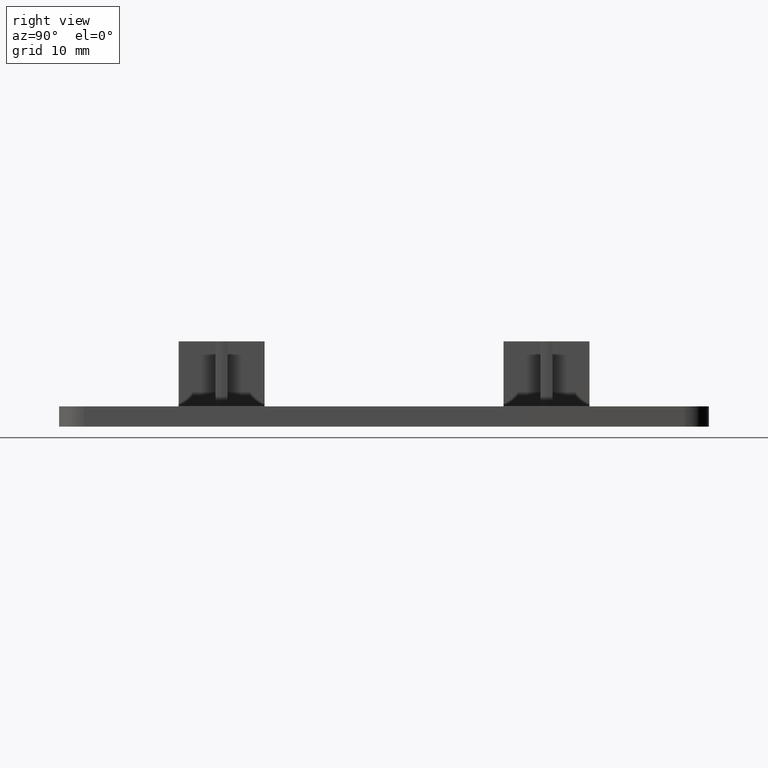
[diagram: clean part render]
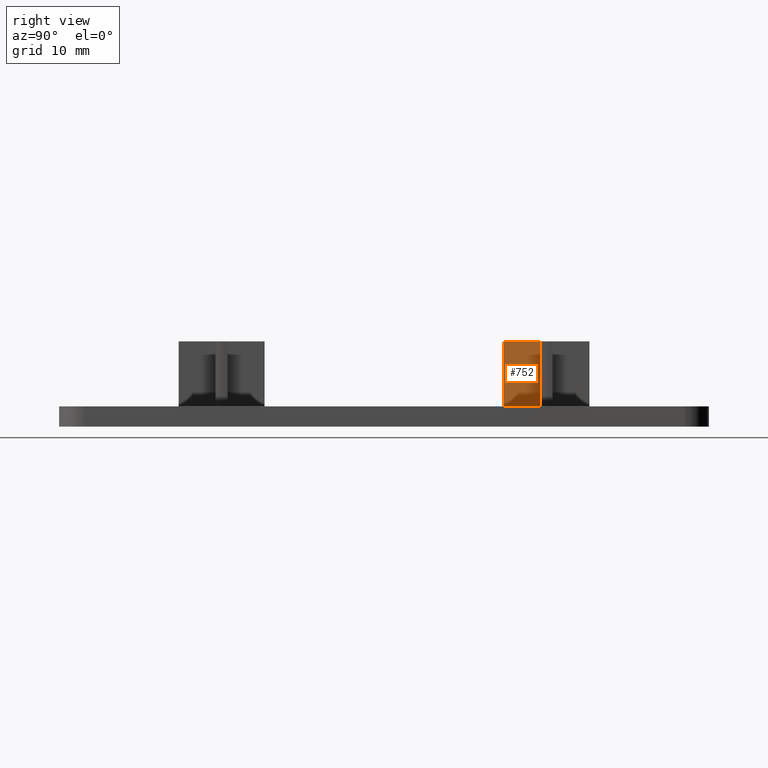
[diagram: same view with one face highlighted and labeled with its STEP entity id]
A machine part, right view. The second image highlights one B-rep face of the part: STEP entity #752.
In plain terms, the highlighted planar face has unit normal (1, 0, 0).
Its self-contained STEP definition (entity closure, byte-faithful):
#118=FACE_OUTER_BOUND('',#154,.T.);
#154=EDGE_LOOP('',(#598,#599,#600,#601));
#213=LINE('',#1187,#305);
#214=LINE('',#1191,#306);
#215=LINE('',#1193,#307);
#216=LINE('',#1194,#308);
#305=VECTOR('',#943,8.);
#306=VECTOR('',#948,4.49666560779319);
#307=VECTOR('',#949,8.);
#308=VECTOR('',#950,4.49666560779319);
#392=VERTEX_POINT('',#1184);
#393=VERTEX_POINT('',#1186);
#394=VERTEX_POINT('',#1190);
#395=VERTEX_POINT('',#1192);
#472=EDGE_CURVE('',#392,#393,#213,.T.);
#474=EDGE_CURVE('',#394,#392,#214,.T.);
#475=EDGE_CURVE('',#394,#395,#215,.T.);
#476=EDGE_CURVE('',#393,#395,#216,.T.);
#598=ORIENTED_EDGE('',*,*,#474,.F.);
#599=ORIENTED_EDGE('',*,*,#475,.T.);
#600=ORIENTED_EDGE('',*,*,#476,.F.);
#601=ORIENTED_EDGE('',*,*,#472,.F.);
#722=PLANE('',#802);
#752=ADVANCED_FACE('',(#118),#722,.T.);
#802=AXIS2_PLACEMENT_3D('',#1189,#946,#947);
#943=DIRECTION('',(0.,0.,1.));
#946=DIRECTION('center_axis',(1.,0.,0.));
#947=DIRECTION('ref_axis',(0.,1.,0.));
#948=DIRECTION('',(0.,-1.,0.));
#949=DIRECTION('',(0.,0.,1.));
#950=DIRECTION('',(0.,1.,0.));
#1184=CARTESIAN_POINT('',(0.749999999999997,34.7533343922068,2.5));
#1186=CARTESIAN_POINT('',(0.749999999999997,34.7533343922068,10.5));
#1187=CARTESIAN_POINT('',(0.749999999999997,34.7533343922068,0.));
#1189=CARTESIAN_POINT('Origin',(0.749999999999997,34.7533343922068,0.));
#1190=CARTESIAN_POINT('',(0.749999999999997,39.25,2.5));
#1191=CARTESIAN_POINT('',(0.749999999999997,27.3766671961034,2.5));
#1192=CARTESIAN_POINT('',(0.749999999999997,39.25,10.5));
#1193=CARTESIAN_POINT('',(0.749999999999997,39.25,0.));
#1194=CARTESIAN_POINT('',(0.749999999999997,34.7533343922068,10.5));